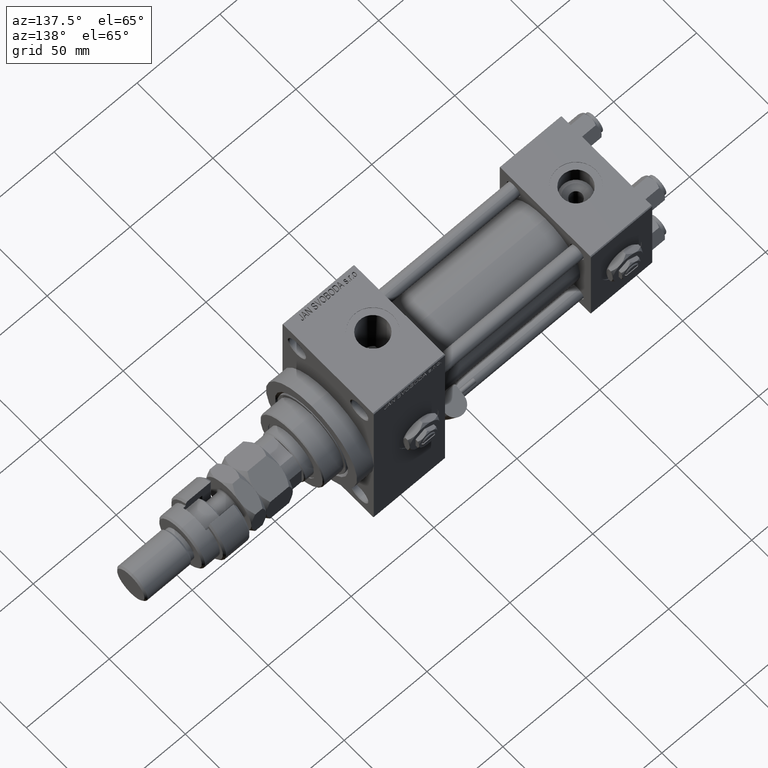
[diagram: clean part render]
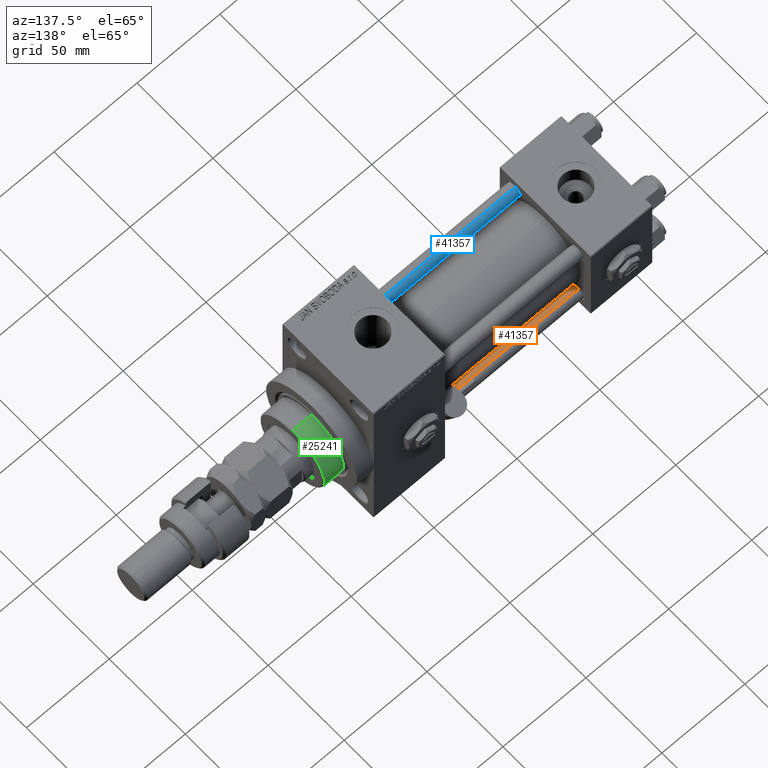
[diagram: same view with three faces highlighted in distinct colors, each labeled with its STEP entity id]
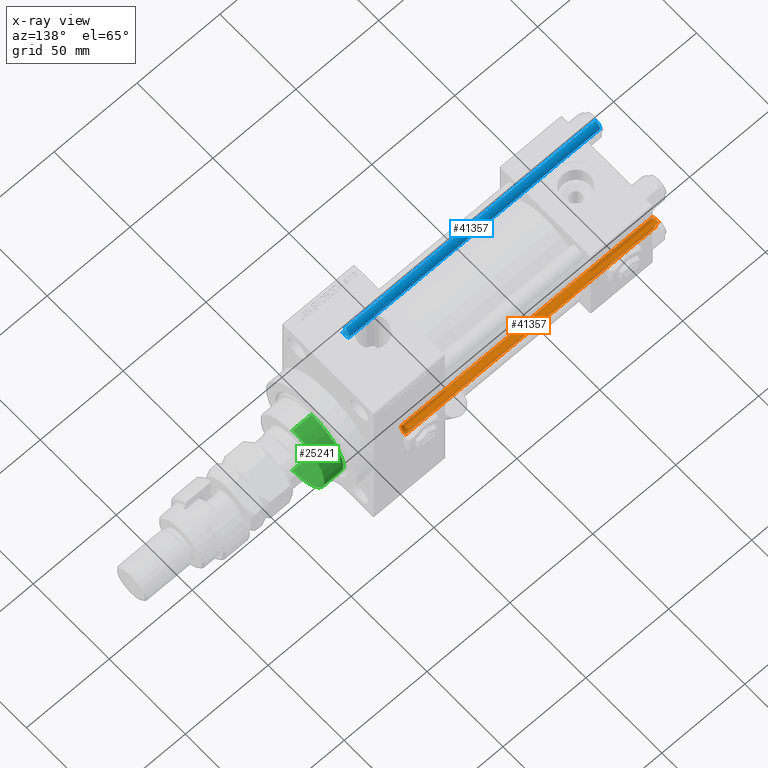
[diagram: x-ray of the same camera — body ghosted, the three highlighted faces saturated]
A machine part, auxiliary view with three faces highlighted in distinct colors.
The next image is the same camera in x-ray (body ghosted, the three faces saturated) — at least one of them is partly hidden behind the body in this view.
Their STEP definitions:

[orange] entity #41357 — the highlighted cylindrical surface (edge-blend (fillet) strip) has radius 4 mm, axis along (1, -0, 0).
#272 = DIRECTION ( 'NONE',  ( 0.000000000000000000, 0.000000000000000000, -1.000000000000000000 ) ) ;
#4829 = AXIS2_PLACEMENT_3D ( 'NONE', #33888, #8473, #33635 ) ;
#5496 = CIRCLE ( 'NONE', #46941, 4.000000000000000000 ) ;
#5658 = ORIENTED_EDGE ( 'NONE', *, *, #46499, .T. ) ;
#7487 = CYLINDRICAL_SURFACE ( 'NONE', #13283, 4.000000000000000000 ) ;
#8473 = DIRECTION ( 'NONE',  ( -0.000000000000000000, -0.000000000000000000, 1.000000000000000000 ) ) ;
#12120 = DIRECTION ( 'NONE',  ( -0.000000000000000000, -0.000000000000000000, -1.000000000000000000 ) ) ;
#13283 = AXIS2_PLACEMENT_3D ( 'NONE', #45046, #40974, #16120 ) ;
#15434 = VERTEX_POINT ( 'NONE', #41480 ) ;
#15674 = CARTESIAN_POINT ( 'NONE',  ( -4.000000000000000000, 0.000000000000000000, 152.0000000000000000 ) ) ;
#16120 = DIRECTION ( 'NONE',  ( -1.000000000000000000, 0.000000000000000000, 0.000000000000000000 ) ) ;
#16936 = VERTEX_POINT ( 'NONE', #36311 ) ;
#18435 = VERTEX_POINT ( 'NONE', #45080 ) ;
#20182 = FACE_OUTER_BOUND ( 'NONE', #45798, .T. ) ;
#22700 = VECTOR ( 'NONE', #12120, 1000.000000000000000 ) ;
#22917 = ORIENTED_EDGE ( 'NONE', *, *, #42390, .T. ) ;
#23020 = LINE ( 'NONE', #32201, #49236 ) ;
#27054 = DIRECTION ( 'NONE',  ( -0.000000000000000000, -0.000000000000000000, -1.000000000000000000 ) ) ;
#32201 = CARTESIAN_POINT ( 'NONE',  ( 4.000000000000000000, 4.898587196589412829E-16, 152.0000000000000000 ) ) ;
#32990 = EDGE_CURVE ( 'NONE', #43777, #18435, #23020, .T. ) ;
#33635 = DIRECTION ( 'NONE',  ( 1.000000000000000000, 0.000000000000000000, 0.000000000000000000 ) ) ;
#33888 = CARTESIAN_POINT ( 'NONE',  ( 0.000000000000000000, 0.000000000000000000, 0.5000000000000281997 ) ) ;
#34147 = ORIENTED_EDGE ( 'NONE', *, *, #48642, .T. ) ;
#36311 = CARTESIAN_POINT ( 'NONE',  ( -4.000000000000000000, 0.000000000000000000, 151.5000000000000284 ) ) ;
#37306 = CARTESIAN_POINT ( 'NONE',  ( 0.000000000000000000, 0.000000000000000000, 151.5000000000000284 ) ) ;
#40974 = DIRECTION ( 'NONE',  ( -0.000000000000000000, -0.000000000000000000, -1.000000000000000000 ) ) ;
#41357 = ADVANCED_FACE ( 'NONE', ( #20182 ), #7487, .T. ) ;
#41480 = CARTESIAN_POINT ( 'NONE',  ( -4.000000000000000000, 0.000000000000000000, 0.5000000000000281997 ) ) ;
#41563 = CARTESIAN_POINT ( 'NONE',  ( 4.000000000000000000, 4.898587196589412829E-16, 151.5000000000000284 ) ) ;
#42390 = EDGE_CURVE ( 'NONE', #15434, #18435, #53185, .T. ) ;
#43777 = VERTEX_POINT ( 'NONE', #41563 ) ;
#45046 = CARTESIAN_POINT ( 'NONE',  ( 0.000000000000000000, 0.000000000000000000, 152.0000000000000000 ) ) ;
#45080 = CARTESIAN_POINT ( 'NONE',  ( 4.000000000000000000, 4.898587196589412829E-16, 0.5000000000000281997 ) ) ;
#45486 = ORIENTED_EDGE ( 'NONE', *, *, #32990, .F. ) ;
#45798 = EDGE_LOOP ( 'NONE', ( #45486, #34147, #5658, #22917 ) ) ;
#46499 = EDGE_CURVE ( 'NONE', #16936, #15434, #52717, .T. ) ;
#46941 = AXIS2_PLACEMENT_3D ( 'NONE', #37306, #272, #49210 ) ;
#48642 = EDGE_CURVE ( 'NONE', #43777, #16936, #5496, .T. ) ;
#49210 = DIRECTION ( 'NONE',  ( 1.000000000000000000, 0.000000000000000000, 0.000000000000000000 ) ) ;
#49236 = VECTOR ( 'NONE', #27054, 1000.000000000000000 ) ;
#52717 = LINE ( 'NONE', #15674, #22700 ) ;
#53185 = CIRCLE ( 'NONE', #4829, 4.000000000000000000 ) ;

[blue] entity #41357 — the highlighted cylindrical surface (edge-blend (fillet) strip) has radius 4 mm, axis along (1, 0, 0).
#272 = DIRECTION ( 'NONE',  ( 0.000000000000000000, 0.000000000000000000, -1.000000000000000000 ) ) ;
#4829 = AXIS2_PLACEMENT_3D ( 'NONE', #33888, #8473, #33635 ) ;
#5496 = CIRCLE ( 'NONE', #46941, 4.000000000000000000 ) ;
#5658 = ORIENTED_EDGE ( 'NONE', *, *, #46499, .T. ) ;
#7487 = CYLINDRICAL_SURFACE ( 'NONE', #13283, 4.000000000000000000 ) ;
#8473 = DIRECTION ( 'NONE',  ( -0.000000000000000000, -0.000000000000000000, 1.000000000000000000 ) ) ;
#12120 = DIRECTION ( 'NONE',  ( -0.000000000000000000, -0.000000000000000000, -1.000000000000000000 ) ) ;
#13283 = AXIS2_PLACEMENT_3D ( 'NONE', #45046, #40974, #16120 ) ;
#15434 = VERTEX_POINT ( 'NONE', #41480 ) ;
#15674 = CARTESIAN_POINT ( 'NONE',  ( -4.000000000000000000, 0.000000000000000000, 152.0000000000000000 ) ) ;
#16120 = DIRECTION ( 'NONE',  ( -1.000000000000000000, 0.000000000000000000, 0.000000000000000000 ) ) ;
#16936 = VERTEX_POINT ( 'NONE', #36311 ) ;
#18435 = VERTEX_POINT ( 'NONE', #45080 ) ;
#20182 = FACE_OUTER_BOUND ( 'NONE', #45798, .T. ) ;
#22700 = VECTOR ( 'NONE', #12120, 1000.000000000000000 ) ;
#22917 = ORIENTED_EDGE ( 'NONE', *, *, #42390, .T. ) ;
#23020 = LINE ( 'NONE', #32201, #49236 ) ;
#27054 = DIRECTION ( 'NONE',  ( -0.000000000000000000, -0.000000000000000000, -1.000000000000000000 ) ) ;
#32201 = CARTESIAN_POINT ( 'NONE',  ( 4.000000000000000000, 4.898587196589412829E-16, 152.0000000000000000 ) ) ;
#32990 = EDGE_CURVE ( 'NONE', #43777, #18435, #23020, .T. ) ;
#33635 = DIRECTION ( 'NONE',  ( 1.000000000000000000, 0.000000000000000000, 0.000000000000000000 ) ) ;
#33888 = CARTESIAN_POINT ( 'NONE',  ( 0.000000000000000000, 0.000000000000000000, 0.5000000000000281997 ) ) ;
#34147 = ORIENTED_EDGE ( 'NONE', *, *, #48642, .T. ) ;
#36311 = CARTESIAN_POINT ( 'NONE',  ( -4.000000000000000000, 0.000000000000000000, 151.5000000000000284 ) ) ;
#37306 = CARTESIAN_POINT ( 'NONE',  ( 0.000000000000000000, 0.000000000000000000, 151.5000000000000284 ) ) ;
#40974 = DIRECTION ( 'NONE',  ( -0.000000000000000000, -0.000000000000000000, -1.000000000000000000 ) ) ;
#41357 = ADVANCED_FACE ( 'NONE', ( #20182 ), #7487, .T. ) ;
#41480 = CARTESIAN_POINT ( 'NONE',  ( -4.000000000000000000, 0.000000000000000000, 0.5000000000000281997 ) ) ;
#41563 = CARTESIAN_POINT ( 'NONE',  ( 4.000000000000000000, 4.898587196589412829E-16, 151.5000000000000284 ) ) ;
#42390 = EDGE_CURVE ( 'NONE', #15434, #18435, #53185, .T. ) ;
#43777 = VERTEX_POINT ( 'NONE', #41563 ) ;
#45046 = CARTESIAN_POINT ( 'NONE',  ( 0.000000000000000000, 0.000000000000000000, 152.0000000000000000 ) ) ;
#45080 = CARTESIAN_POINT ( 'NONE',  ( 4.000000000000000000, 4.898587196589412829E-16, 0.5000000000000281997 ) ) ;
#45486 = ORIENTED_EDGE ( 'NONE', *, *, #32990, .F. ) ;
#45798 = EDGE_LOOP ( 'NONE', ( #45486, #34147, #5658, #22917 ) ) ;
#46499 = EDGE_CURVE ( 'NONE', #16936, #15434, #52717, .T. ) ;
#46941 = AXIS2_PLACEMENT_3D ( 'NONE', #37306, #272, #49210 ) ;
#48642 = EDGE_CURVE ( 'NONE', #43777, #16936, #5496, .T. ) ;
#49210 = DIRECTION ( 'NONE',  ( 1.000000000000000000, 0.000000000000000000, 0.000000000000000000 ) ) ;
#49236 = VECTOR ( 'NONE', #27054, 1000.000000000000000 ) ;
#52717 = LINE ( 'NONE', #15674, #22700 ) ;
#53185 = CIRCLE ( 'NONE', #4829, 4.000000000000000000 ) ;

[green] entity #25241 — the highlighted cylindrical surface (partial cylindrical patch) has radius 21 mm, axis along (-1, 0, 0).
#3201 = DIRECTION ( 'NONE',  ( 1.000000000000000000, 0.000000000000000000, 0.000000000000000000 ) ) ;
#3350 = CARTESIAN_POINT ( 'NONE',  ( -21.00000000000000000, 0.000000000000000000, 55.26000000000000512 ) ) ;
#3459 = CARTESIAN_POINT ( 'NONE',  ( 21.00000000000000000, 2.571758278209441661E-15, 54.75999999999999091 ) ) ;
#3468 = EDGE_CURVE ( 'NONE', #5769, #30311, #31998, .T. ) ;
#3585 = EDGE_CURVE ( 'NONE', #30311, #6256, #42316, .T. ) ;
#3603 = CIRCLE ( 'NONE', #10499, 21.00000000000000000 ) ;
#5415 = ORIENTED_EDGE ( 'NONE', *, *, #3468, .T. ) ;
#5769 = VERTEX_POINT ( 'NONE', #31812 ) ;
#6163 = CARTESIAN_POINT ( 'NONE',  ( 0.000000000000000000, 0.000000000000000000, 54.75999999999999091 ) ) ;
#6256 = VERTEX_POINT ( 'NONE', #19506 ) ;
#6796 = ORIENTED_EDGE ( 'NONE', *, *, #45027, .T. ) ;
#6955 = AXIS2_PLACEMENT_3D ( 'NONE', #47274, #36190, #3201 ) ;
#8468 = EDGE_CURVE ( 'NONE', #15011, #12266, #24399, .T. ) ;
#9680 = DIRECTION ( 'NONE',  ( 0.000000000000000000, 0.000000000000000000, 1.000000000000000000 ) ) ;
#9869 = LINE ( 'NONE', #22313, #51121 ) ;
#10499 = AXIS2_PLACEMENT_3D ( 'NONE', #15335, #31822, #28012 ) ;
#10726 = VECTOR ( 'NONE', #49032, 1000.000000000000000 ) ;
#12266 = VERTEX_POINT ( 'NONE', #33507 ) ;
#12721 = CARTESIAN_POINT ( 'NONE',  ( 0.000000000000000000, 0.000000000000000000, 55.26000000000000512 ) ) ;
#13389 = DIRECTION ( 'NONE',  ( -0.000000000000000000, -0.000000000000000000, -1.000000000000000000 ) ) ;
#13832 = AXIS2_PLACEMENT_3D ( 'NONE', #18073, #9680, #18343 ) ;
#14247 = DIRECTION ( 'NONE',  ( 0.000000000000000000, 0.000000000000000000, -1.000000000000000000 ) ) ;
#15011 = VERTEX_POINT ( 'NONE', #3459 ) ;
#15335 = CARTESIAN_POINT ( 'NONE',  ( 0.000000000000000000, 0.000000000000000000, 43.25999999999999801 ) ) ;
#18073 = CARTESIAN_POINT ( 'NONE',  ( 0.000000000000000000, 0.000000000000000000, 43.25999999999999801 ) ) ;
#18343 = DIRECTION ( 'NONE',  ( 1.000000000000000000, 0.000000000000000000, 0.000000000000000000 ) ) ;
#19506 = CARTESIAN_POINT ( 'NONE',  ( 20.96385542168674831, -1.231570484631382412, 43.25999999999999801 ) ) ;
#20110 = LINE ( 'NONE', #3350, #10726 ) ;
#22313 = CARTESIAN_POINT ( 'NONE',  ( 21.00000000000000000, 2.571758278209441661E-15, 55.26000000000000512 ) ) ;
#22928 = ORIENTED_EDGE ( 'NONE', *, *, #53285, .T. ) ;
#24399 = CIRCLE ( 'NONE', #48591, 21.00000000000000000 ) ;
#25241 = ADVANCED_FACE ( 'NONE', ( #50295 ), #37612, .T. ) ;
#26306 = VERTEX_POINT ( 'NONE', #51173 ) ;
#27409 = CARTESIAN_POINT ( 'NONE',  ( -20.96385542168674831, -1.231570484631382412, 43.25999999999999801 ) ) ;
#28012 = DIRECTION ( 'NONE',  ( 1.000000000000000000, 0.000000000000000000, 0.000000000000000000 ) ) ;
#30311 = VERTEX_POINT ( 'NONE', #27409 ) ;
#31812 = CARTESIAN_POINT ( 'NONE',  ( -21.00000000000000000, 0.000000000000000000, 43.25999999999999801 ) ) ;
#31822 = DIRECTION ( 'NONE',  ( 0.000000000000000000, 0.000000000000000000, 1.000000000000000000 ) ) ;
#31998 = CIRCLE ( 'NONE', #13832, 21.00000000000000000 ) ;
#33179 = ORIENTED_EDGE ( 'NONE', *, *, #3585, .T. ) ;
#33507 = CARTESIAN_POINT ( 'NONE',  ( -21.00000000000000000, 0.000000000000000000, 54.75999999999999091 ) ) ;
#33817 = DIRECTION ( 'NONE',  ( -1.000000000000000000, 0.000000000000000000, 0.000000000000000000 ) ) ;
#36190 = DIRECTION ( 'NONE',  ( 0.000000000000000000, 0.000000000000000000, 1.000000000000000000 ) ) ;
#37471 = EDGE_CURVE ( 'NONE', #15011, #26306, #9869, .T. ) ;
#37612 = CYLINDRICAL_SURFACE ( 'NONE', #37788, 21.00000000000000000 ) ;
#37788 = AXIS2_PLACEMENT_3D ( 'NONE', #12721, #44458, #33817 ) ;
#39839 = ORIENTED_EDGE ( 'NONE', *, *, #8468, .T. ) ;
#42316 = CIRCLE ( 'NONE', #6955, 21.00000000000000000 ) ;
#44458 = DIRECTION ( 'NONE',  ( -0.000000000000000000, -0.000000000000000000, -1.000000000000000000 ) ) ;
#45027 = EDGE_CURVE ( 'NONE', #6256, #26306, #3603, .T. ) ;
#45074 = EDGE_LOOP ( 'NONE', ( #47690, #39839, #22928, #5415, #33179, #6796 ) ) ;
#47274 = CARTESIAN_POINT ( 'NONE',  ( 0.000000000000000000, 0.000000000000000000, 43.25999999999999801 ) ) ;
#47690 = ORIENTED_EDGE ( 'NONE', *, *, #37471, .F. ) ;
#48591 = AXIS2_PLACEMENT_3D ( 'NONE', #6163, #14247, #50759 ) ;
#49032 = DIRECTION ( 'NONE',  ( -0.000000000000000000, -0.000000000000000000, -1.000000000000000000 ) ) ;
#50295 = FACE_OUTER_BOUND ( 'NONE', #45074, .T. ) ;
#50759 = DIRECTION ( 'NONE',  ( 1.000000000000000000, 0.000000000000000000, 0.000000000000000000 ) ) ;
#51121 = VECTOR ( 'NONE', #13389, 1000.000000000000000 ) ;
#51173 = CARTESIAN_POINT ( 'NONE',  ( 21.00000000000000000, 2.571758278209441661E-15, 43.25999999999999801 ) ) ;
#53285 = EDGE_CURVE ( 'NONE', #12266, #5769, #20110, .T. ) ;